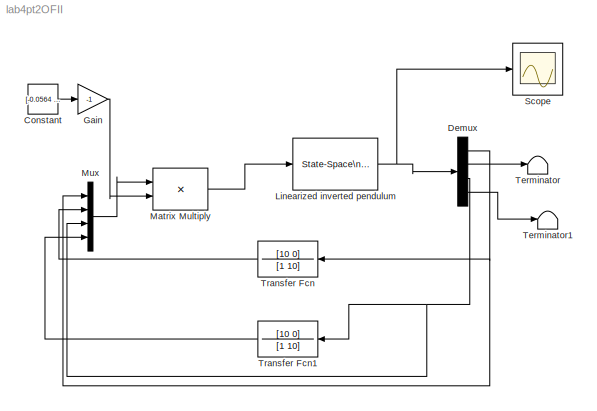
MODEL lab4pt2OFII
KIND model
BLOCK [Constant] Constant
  SID = 1
  Value = [-0.0564   -0.1410   -7.8994   -0.7320]
BLOCK [Demux] Demux
  DisplayOption = bar
  Ports = [1, 4]
  SID = 2
BLOCK [Gain] Gain
  Gain = -1
  OutDataTypeStr = Inherit: Inherit via internal rule
  ParamDataTypeStr = Inherit: Inherit via internal rule
  SID = 3
  SaturateOnIntegerOverflow = off
BLOCK [Reference] Linearized inverted pendulum  REF=simulink_extras/Additional\nLinear/State-Space\n(with initial outputs)
  A = [0,1,0,0; 0,0,-4.5138,0; 0,0,0,1; 0,0,47.1744,0]
  B = [0; 2.1978; 0; -7.2535]
  C = eye(4)
  D = [0;0;0;0]
  Ports = [1, 1]
  SID = 4
  SourceBlock = simulink_extras/Additional\nLinear/State-Space\n(with initial outputs)
  SourceType = State-Space with Initial Outputs
  U0 = 1
  Y0 = [0; 0; 0.035; 0.01]
BLOCK [Product] Matrix Multiply
  InputSameDT = off
  Multiplication = Matrix(*)
  OutDataTypeStr = Inherit: Inherit via internal rule
  Ports = [2, 1]
  RndMeth = Floor
  SID = 5
  SaturateOnIntegerOverflow = off
BLOCK [Mux] Mux
  DisplayOption = bar
  Ports = [4, 1]
  SID = 6
BLOCK [Scope] Scope
  DataFormat = StructureWithTime
  Floating = off
  LegendLocations = 0.86002     0.89115     0.12202    0.070139
  NumInputPorts = 1
  Ports = [1]
  SID = 7
  SampleTime = 0
  ShowLegends = on
BLOCK [Terminator] Terminator
  SID = 8
BLOCK [Terminator] Terminator1
  SID = 9
BLOCK [TransferFcn] Transfer Fcn
  Denominator = [1 10]
  Numerator = [10 0]
  SID = 10
BLOCK [TransferFcn] Transfer Fcn1
  Denominator = [1 10]
  Numerator = [10 0]
  SID = 11
LINE Constant:1 -> Gain:1
NET Demux:1 -> Mux:1, Transfer Fcn:1
LINE Demux:2 -> Terminator:1
NET Demux:3 -> Mux:3, Transfer Fcn1:1
LINE Demux:4 -> Terminator1:1
LINE Gain:1 -> Matrix Multiply:2
NET Linearized inverted pendulum:1 -> Demux:1, Scope:1
LINE Matrix Multiply:1 -> Linearized inverted pendulum:1
LINE Mux:1 -> Matrix Multiply:1
LINE Transfer Fcn1:1 -> Mux:4
LINE Transfer Fcn:1 -> Mux:2
note: NET lines group one-source signal fan-out (src -> all destinations, sorted); 1:1 wires keep LINE
